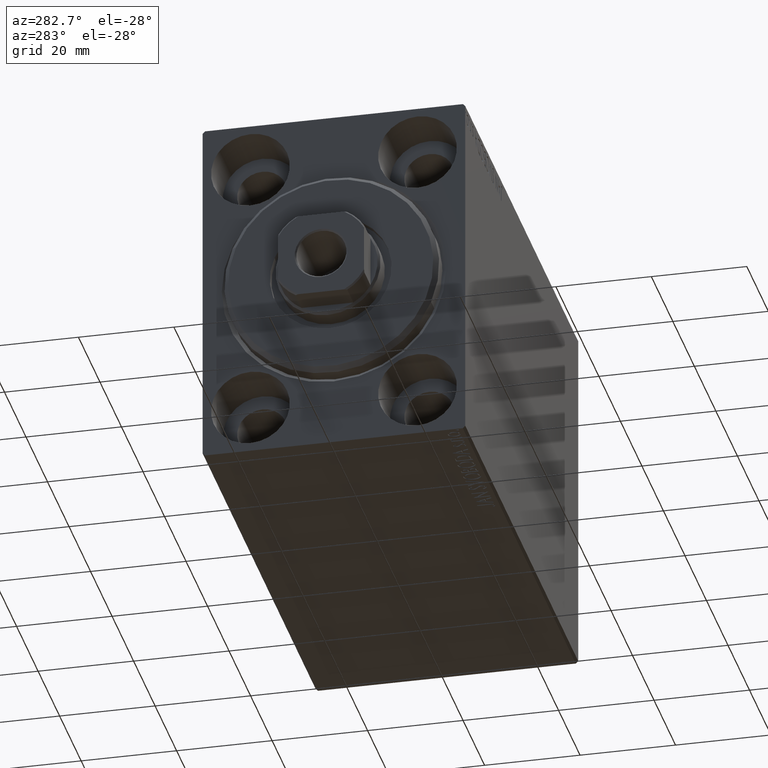
[diagram: clean part render]
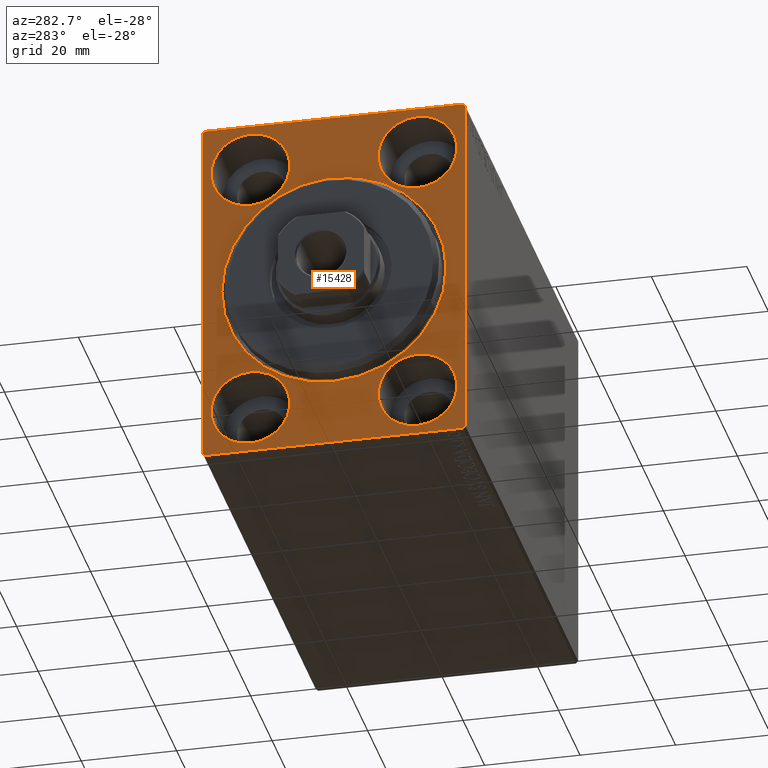
[diagram: same view with one face highlighted and labeled with its STEP entity id]
A machine part, auxiliary view. The second image highlights one B-rep face of the part: STEP entity #15428.
In plain terms, the highlighted planar face has unit normal (1, 0, 0).
Its self-contained STEP definition (entity closure, byte-faithful):
#341 = DIRECTION ( 'NONE',  ( 0.000000000000000000, 0.000000000000000000, 1.000000000000000000 ) ) ;
#515 = DIRECTION ( 'NONE',  ( 0.000000000000000000, 0.000000000000000000, 1.000000000000000000 ) ) ;
#1167 = DIRECTION ( 'NONE',  ( 0.000000000000000000, 0.000000000000000000, -1.000000000000000000 ) ) ;
#1285 = DIRECTION ( 'NONE',  ( -1.000000000000000000, 0.000000000000000000, 0.000000000000000000 ) ) ;
#1453 = VECTOR ( 'NONE', #38057, 1000.000000000000114 ) ;
#1500 = EDGE_CURVE ( 'NONE', #42133, #12884, #1563, .T. ) ;
#1558 = CARTESIAN_POINT ( 'NONE',  ( 0.000000000000000000, -17.49999999999999645, 19.25000000000000000 ) ) ;
#1563 = LINE ( 'NONE', #14930, #11904 ) ;
#1876 = EDGE_LOOP ( 'NONE', ( #1973, #21682, #3175, #34798, #37797, #3912, #29068, #20665 ) ) ;
#1973 = ORIENTED_EDGE ( 'NONE', *, *, #30751, .F. ) ;
#2121 = VECTOR ( 'NONE', #7828, 1000.000000000000114 ) ;
#2229 = VERTEX_POINT ( 'NONE', #35489 ) ;
#2700 = DIRECTION ( 'NONE',  ( -0.000000000000000000, -0.7071067811865378028, 0.7071067811865573427 ) ) ;
#2709 = PLANE ( 'NONE',  #26492 ) ;
#3175 = ORIENTED_EDGE ( 'NONE', *, *, #6290, .F. ) ;
#3756 = CARTESIAN_POINT ( 'NONE',  ( 0.000000000000000000, -17.50000000000000355, -27.50000000000000355 ) ) ;
#3912 = ORIENTED_EDGE ( 'NONE', *, *, #38384, .T. ) ;
#4564 = ORIENTED_EDGE ( 'NONE', *, *, #20351, .F. ) ;
#4670 = CIRCLE ( 'NONE', #41624, 8.249999999999992895 ) ;
#5006 = AXIS2_PLACEMENT_3D ( 'NONE', #30042, #43137, #16893 ) ;
#5033 = DIRECTION ( 'NONE',  ( 1.000000000000000000, 0.000000000000000000, 0.000000000000000000 ) ) ;
#5564 = EDGE_CURVE ( 'NONE', #10085, #33097, #38667, .T. ) ;
#6207 = ORIENTED_EDGE ( 'NONE', *, *, #33795, .F. ) ;
#6272 = CARTESIAN_POINT ( 'NONE',  ( 0.000000000000000000, 0.000000000000000000, 0.000000000000000000 ) ) ;
#6290 = EDGE_CURVE ( 'NONE', #33983, #8011, #37157, .T. ) ;
#6651 = DIRECTION ( 'NONE',  ( 0.000000000000000000, 0.000000000000000000, 1.000000000000000000 ) ) ;
#7341 = DIRECTION ( 'NONE',  ( 0.000000000000000000, 1.000000000000000000, 0.000000000000000000 ) ) ;
#7828 = DIRECTION ( 'NONE',  ( 0.000000000000000000, -0.7071067811865474617, -0.7071067811865474617 ) ) ;
#7950 = EDGE_CURVE ( 'NONE', #29367, #31515, #31283, .T. ) ;
#8011 = VERTEX_POINT ( 'NONE', #20497 ) ;
#8105 = DIRECTION ( 'NONE',  ( 0.000000000000000000, 0.000000000000000000, -1.000000000000000000 ) ) ;
#8319 = VECTOR ( 'NONE', #8105, 1000.000000000000000 ) ;
#8327 = CARTESIAN_POINT ( 'NONE',  ( 0.000000000000000000, 17.49999999999999645, -35.75000000000000711 ) ) ;
#8540 = VERTEX_POINT ( 'NONE', #16601 ) ;
#8570 = EDGE_CURVE ( 'NONE', #25462, #22234, #9242, .T. ) ;
#8657 = CARTESIAN_POINT ( 'NONE',  ( 0.000000000000000000, 27.50000000000000355, -36.99999999999998579 ) ) ;
#9242 = CIRCLE ( 'NONE', #33396, 8.250000000000000000 ) ;
#9829 = EDGE_LOOP ( 'NONE', ( #31438, #19563 ) ) ;
#10085 = VERTEX_POINT ( 'NONE', #31825 ) ;
#10382 = EDGE_CURVE ( 'NONE', #2229, #14736, #25541, .T. ) ;
#10581 = VECTOR ( 'NONE', #7341, 1000.000000000000000 ) ;
#11154 = LINE ( 'NONE', #24752, #2121 ) ;
#11904 = VECTOR ( 'NONE', #22059, 1000.000000000000000 ) ;
#12643 = ORIENTED_EDGE ( 'NONE', *, *, #8570, .F. ) ;
#12806 = AXIS2_PLACEMENT_3D ( 'NONE', #17437, #31023, #515 ) ;
#12884 = VERTEX_POINT ( 'NONE', #41118 ) ;
#13478 = CARTESIAN_POINT ( 'NONE',  ( 0.000000000000000000, -27.50000000000000355, -37.00000000000000000 ) ) ;
#13962 = ORIENTED_EDGE ( 'NONE', *, *, #10382, .F. ) ;
#14089 = DIRECTION ( 'NONE',  ( 0.000000000000000000, 0.000000000000000000, 1.000000000000000000 ) ) ;
#14150 = AXIS2_PLACEMENT_3D ( 'NONE', #41225, #31016, #14089 ) ;
#14276 = CARTESIAN_POINT ( 'NONE',  ( 0.000000000000000000, -27.50000000000000355, 37.00000000000000000 ) ) ;
#14736 = VERTEX_POINT ( 'NONE', #1558 ) ;
#14930 = CARTESIAN_POINT ( 'NONE',  ( 0.000000000000000000, 27.50000000000000355, -37.50000000000000000 ) ) ;
#15428 = ADVANCED_FACE ( 'NONE', ( #43644, #19646, #15858, #32981, #23434, #16072 ), #2709, .F. ) ;
#15858 = FACE_BOUND ( 'NONE', #28063, .T. ) ;
#16072 = FACE_OUTER_BOUND ( 'NONE', #1876, .T. ) ;
#16296 = DIRECTION ( 'NONE',  ( 0.000000000000000000, 0.000000000000000000, -1.000000000000000000 ) ) ;
#16601 = CARTESIAN_POINT ( 'NONE',  ( 0.000000000000000000, 17.50000000000000355, 19.25000000000000000 ) ) ;
#16692 = DIRECTION ( 'NONE',  ( -1.000000000000000000, 0.000000000000000000, 0.000000000000000000 ) ) ;
#16893 = DIRECTION ( 'NONE',  ( 0.000000000000000000, 0.000000000000000000, 1.000000000000000000 ) ) ;
#17343 = DIRECTION ( 'NONE',  ( -1.000000000000000000, 0.000000000000000000, 0.000000000000000000 ) ) ;
#17437 = CARTESIAN_POINT ( 'NONE',  ( 0.000000000000000000, -17.50000000000000355, -27.50000000000000355 ) ) ;
#19390 = DIRECTION ( 'NONE',  ( -0.000000000000000000, 0.7071067811865524577, -0.7071067811865426878 ) ) ;
#19563 = ORIENTED_EDGE ( 'NONE', *, *, #21189, .F. ) ;
#19646 = FACE_BOUND ( 'NONE', #26133, .T. ) ;
#19871 = DIRECTION ( 'NONE',  ( 1.000000000000000000, 0.000000000000000000, 0.000000000000000000 ) ) ;
#20037 = CARTESIAN_POINT ( 'NONE',  ( 0.000000000000000000, 17.50000000000000355, 27.49999999999999645 ) ) ;
#20351 = EDGE_CURVE ( 'NONE', #20564, #8540, #4670, .T. ) ;
#20497 = CARTESIAN_POINT ( 'NONE',  ( 0.000000000000000000, -27.00000000000000355, 37.50000000000000000 ) ) ;
#20516 = EDGE_LOOP ( 'NONE', ( #35322, #27356 ) ) ;
#20564 = VERTEX_POINT ( 'NONE', #28873 ) ;
#20665 = ORIENTED_EDGE ( 'NONE', *, *, #23609, .T. ) ;
#21189 = EDGE_CURVE ( 'NONE', #31515, #29367, #40954, .T. ) ;
#21682 = ORIENTED_EDGE ( 'NONE', *, *, #42657, .T. ) ;
#21787 = CARTESIAN_POINT ( 'NONE',  ( 0.000000000000000000, -27.50000000000000355, -37.50000000000000000 ) ) ;
#22059 = DIRECTION ( 'NONE',  ( 0.000000000000000000, -9.251858538542970348E-17, 1.000000000000000000 ) ) ;
#22234 = VERTEX_POINT ( 'NONE', #8327 ) ;
#23434 = FACE_BOUND ( 'NONE', #9829, .T. ) ;
#23609 = EDGE_CURVE ( 'NONE', #10085, #33483, #26320, .T. ) ;
#23738 = DIRECTION ( 'NONE',  ( -1.000000000000000000, 0.000000000000000000, 0.000000000000000000 ) ) ;
#23844 = CARTESIAN_POINT ( 'NONE',  ( 0.000000000000000000, 27.49999999999999645, 37.50000000000000711 ) ) ;
#24752 = CARTESIAN_POINT ( 'NONE',  ( 0.000000000000000000, 27.50000000000000355, -36.99999999999998579 ) ) ;
#25149 = CARTESIAN_POINT ( 'NONE',  ( 0.000000000000000000, 2.877919977996282293E-15, -23.50000000000001776 ) ) ;
#25329 = AXIS2_PLACEMENT_3D ( 'NONE', #28131, #41667, #1167 ) ;
#25462 = VERTEX_POINT ( 'NONE', #28732 ) ;
#25523 = DIRECTION ( 'NONE',  ( 0.000000000000000000, 0.000000000000000000, -1.000000000000000000 ) ) ;
#25541 = CIRCLE ( 'NONE', #5006, 8.249999999999992895 ) ;
#25839 = CARTESIAN_POINT ( 'NONE',  ( 0.000000000000000000, 26.99999999999999645, 37.50000000000000711 ) ) ;
#26133 = EDGE_LOOP ( 'NONE', ( #12643, #34839 ) ) ;
#26320 = LINE ( 'NONE', #36285, #27390 ) ;
#26492 = AXIS2_PLACEMENT_3D ( 'NONE', #6272, #19871, #16296 ) ;
#27082 = EDGE_CURVE ( 'NONE', #31013, #28966, #35964, .T. ) ;
#27356 = ORIENTED_EDGE ( 'NONE', *, *, #27082, .T. ) ;
#27390 = VECTOR ( 'NONE', #2700, 1000.000000000000000 ) ;
#27902 = CARTESIAN_POINT ( 'NONE',  ( 0.000000000000000000, 26.99999999999998934, -37.50000000000000000 ) ) ;
#28063 = EDGE_LOOP ( 'NONE', ( #13962, #6207 ) ) ;
#28131 = CARTESIAN_POINT ( 'NONE',  ( 0.000000000000000000, 0.000000000000000000, 0.000000000000000000 ) ) ;
#28212 = EDGE_LOOP ( 'NONE', ( #4564, #30242 ) ) ;
#28253 = CARTESIAN_POINT ( 'NONE',  ( 0.000000000000000000, 17.50000000000000355, 27.49999999999999645 ) ) ;
#28573 = VERTEX_POINT ( 'NONE', #43317 ) ;
#28732 = CARTESIAN_POINT ( 'NONE',  ( 0.000000000000000000, 17.49999999999999645, -19.25000000000000355 ) ) ;
#28873 = CARTESIAN_POINT ( 'NONE',  ( 0.000000000000000000, 17.50000000000000355, 35.74999999999999289 ) ) ;
#28901 = CARTESIAN_POINT ( 'NONE',  ( 0.000000000000000000, -17.50000000000000355, -19.25000000000000355 ) ) ;
#28966 = VERTEX_POINT ( 'NONE', #41026 ) ;
#29068 = ORIENTED_EDGE ( 'NONE', *, *, #5564, .F. ) ;
#29367 = VERTEX_POINT ( 'NONE', #28901 ) ;
#29886 = CIRCLE ( 'NONE', #35530, 8.249999999999992895 ) ;
#30042 = CARTESIAN_POINT ( 'NONE',  ( 0.000000000000000000, -17.49999999999999645, 27.49999999999999645 ) ) ;
#30058 = DIRECTION ( 'NONE',  ( 0.000000000000000000, 0.000000000000000000, 1.000000000000000000 ) ) ;
#30242 = ORIENTED_EDGE ( 'NONE', *, *, #37527, .F. ) ;
#30427 = AXIS2_PLACEMENT_3D ( 'NONE', #42401, #5033, #25523 ) ;
#30559 = AXIS2_PLACEMENT_3D ( 'NONE', #32933, #16692, #30058 ) ;
#30751 = EDGE_CURVE ( 'NONE', #28573, #33483, #38577, .T. ) ;
#30844 = CARTESIAN_POINT ( 'NONE',  ( 0.000000000000000000, 17.49999999999999645, -27.50000000000000355 ) ) ;
#31013 = VERTEX_POINT ( 'NONE', #25149 ) ;
#31016 = DIRECTION ( 'NONE',  ( -1.000000000000000000, 0.000000000000000000, 0.000000000000000000 ) ) ;
#31023 = DIRECTION ( 'NONE',  ( -1.000000000000000000, 0.000000000000000000, 0.000000000000000000 ) ) ;
#31283 = CIRCLE ( 'NONE', #12806, 8.250000000000000000 ) ;
#31335 = EDGE_CURVE ( 'NONE', #28966, #31013, #43894, .T. ) ;
#31438 = ORIENTED_EDGE ( 'NONE', *, *, #7950, .F. ) ;
#31515 = VERTEX_POINT ( 'NONE', #40402 ) ;
#31576 = DIRECTION ( 'NONE',  ( 0.000000000000000000, 0.000000000000000000, 1.000000000000000000 ) ) ;
#31825 = CARTESIAN_POINT ( 'NONE',  ( 0.000000000000000000, -27.00000000000001776, -37.50000000000000000 ) ) ;
#32933 = CARTESIAN_POINT ( 'NONE',  ( 0.000000000000000000, 17.49999999999999645, -27.50000000000000355 ) ) ;
#32981 = FACE_BOUND ( 'NONE', #28212, .T. ) ;
#33097 = VERTEX_POINT ( 'NONE', #27902 ) ;
#33396 = AXIS2_PLACEMENT_3D ( 'NONE', #30844, #23738, #341 ) ;
#33483 = VERTEX_POINT ( 'NONE', #13478 ) ;
#33795 = EDGE_CURVE ( 'NONE', #14736, #2229, #35436, .T. ) ;
#33983 = VERTEX_POINT ( 'NONE', #35832 ) ;
#34030 = DIRECTION ( 'NONE',  ( 0.000000000000000000, 0.000000000000000000, 1.000000000000000000 ) ) ;
#34101 = CIRCLE ( 'NONE', #30559, 8.250000000000000000 ) ;
#34798 = ORIENTED_EDGE ( 'NONE', *, *, #39273, .T. ) ;
#34839 = ORIENTED_EDGE ( 'NONE', *, *, #36889, .F. ) ;
#35322 = ORIENTED_EDGE ( 'NONE', *, *, #31335, .T. ) ;
#35436 = CIRCLE ( 'NONE', #14150, 8.249999999999992895 ) ;
#35489 = CARTESIAN_POINT ( 'NONE',  ( 0.000000000000000000, -17.49999999999999645, 35.74999999999999289 ) ) ;
#35530 = AXIS2_PLACEMENT_3D ( 'NONE', #28253, #1285, #31576 ) ;
#35832 = CARTESIAN_POINT ( 'NONE',  ( 0.000000000000000000, 26.99999999999999645, 37.50000000000000711 ) ) ;
#35964 = CIRCLE ( 'NONE', #25329, 23.50000000000001776 ) ;
#36256 = LINE ( 'NONE', #25839, #40435 ) ;
#36285 = CARTESIAN_POINT ( 'NONE',  ( 0.000000000000000000, -27.00000000000001776, -37.50000000000000000 ) ) ;
#36889 = EDGE_CURVE ( 'NONE', #22234, #25462, #34101, .T. ) ;
#36900 = DIRECTION ( 'NONE',  ( -1.000000000000000000, 0.000000000000000000, 0.000000000000000000 ) ) ;
#37157 = LINE ( 'NONE', #23844, #42574 ) ;
#37373 = DIRECTION ( 'NONE',  ( 0.000000000000000000, -1.000000000000000000, -1.261617073437677999E-16 ) ) ;
#37388 = AXIS2_PLACEMENT_3D ( 'NONE', #3756, #17343, #34030 ) ;
#37527 = EDGE_CURVE ( 'NONE', #8540, #20564, #29886, .T. ) ;
#37797 = ORIENTED_EDGE ( 'NONE', *, *, #1500, .F. ) ;
#38057 = DIRECTION ( 'NONE',  ( -0.000000000000000000, 0.7071067811865474617, 0.7071067811865474617 ) ) ;
#38384 = EDGE_CURVE ( 'NONE', #42133, #33097, #11154, .T. ) ;
#38577 = LINE ( 'NONE', #39238, #8319 ) ;
#38667 = LINE ( 'NONE', #21787, #10581 ) ;
#39238 = CARTESIAN_POINT ( 'NONE',  ( 0.000000000000000000, -27.50000000000000355, 37.50000000000000000 ) ) ;
#39273 = EDGE_CURVE ( 'NONE', #33983, #12884, #36256, .T. ) ;
#40402 = CARTESIAN_POINT ( 'NONE',  ( 0.000000000000000000, -17.50000000000000355, -35.75000000000000711 ) ) ;
#40435 = VECTOR ( 'NONE', #19390, 1000.000000000000000 ) ;
#40954 = CIRCLE ( 'NONE', #37388, 8.250000000000000000 ) ;
#41026 = CARTESIAN_POINT ( 'NONE',  ( 0.000000000000000000, 0.000000000000000000, 23.50000000000001776 ) ) ;
#41118 = CARTESIAN_POINT ( 'NONE',  ( 0.000000000000000000, 27.49999999999999645, 37.00000000000001421 ) ) ;
#41182 = LINE ( 'NONE', #14276, #1453 ) ;
#41225 = CARTESIAN_POINT ( 'NONE',  ( 0.000000000000000000, -17.49999999999999645, 27.49999999999999645 ) ) ;
#41624 = AXIS2_PLACEMENT_3D ( 'NONE', #20037, #36900, #6651 ) ;
#41667 = DIRECTION ( 'NONE',  ( 1.000000000000000000, 0.000000000000000000, 0.000000000000000000 ) ) ;
#42133 = VERTEX_POINT ( 'NONE', #8657 ) ;
#42401 = CARTESIAN_POINT ( 'NONE',  ( 0.000000000000000000, 0.000000000000000000, 0.000000000000000000 ) ) ;
#42574 = VECTOR ( 'NONE', #37373, 1000.000000000000000 ) ;
#42657 = EDGE_CURVE ( 'NONE', #28573, #8011, #41182, .T. ) ;
#43137 = DIRECTION ( 'NONE',  ( -1.000000000000000000, 0.000000000000000000, 0.000000000000000000 ) ) ;
#43317 = CARTESIAN_POINT ( 'NONE',  ( 0.000000000000000000, -27.50000000000000355, 37.00000000000000000 ) ) ;
#43644 = FACE_BOUND ( 'NONE', #20516, .T. ) ;
#43894 = CIRCLE ( 'NONE', #30427, 23.50000000000001776 ) ;